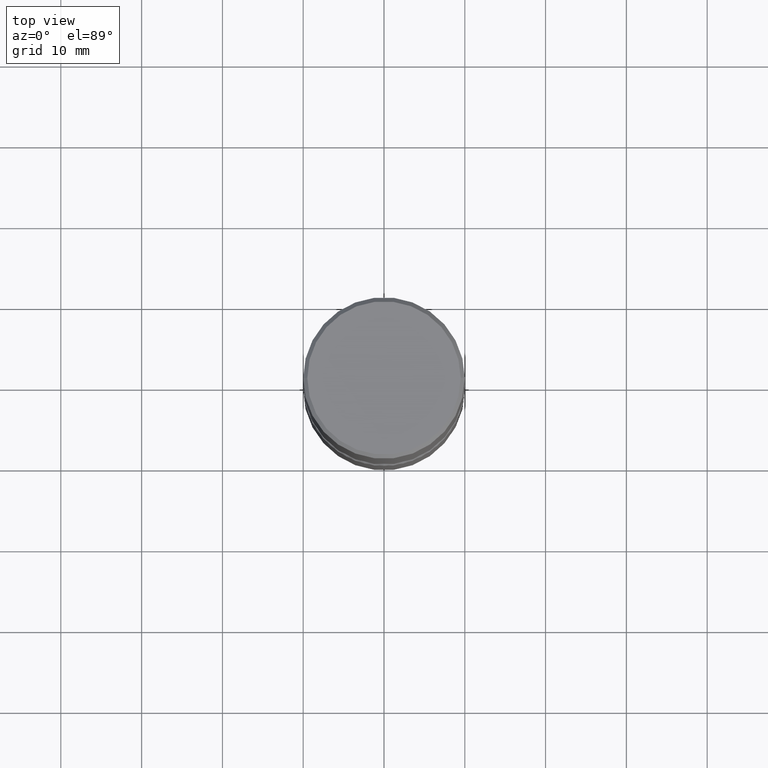
[diagram: clean part render]
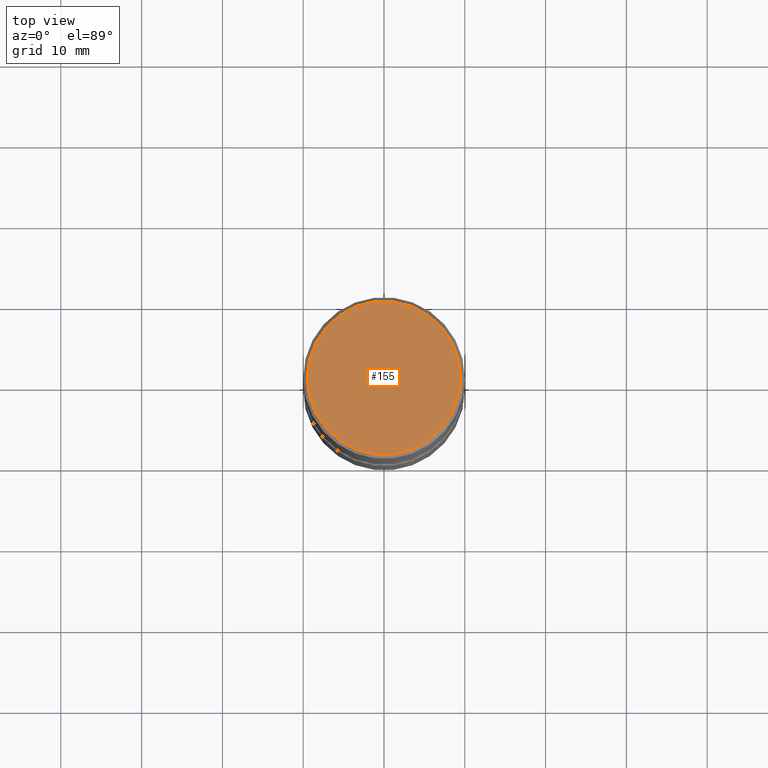
[diagram: same view with one face highlighted and labeled with its STEP entity id]
A machine part, top view. The second image highlights one B-rep face of the part: STEP entity #155.
In plain terms, the highlighted planar face has unit normal (0, -0, -1).
Its self-contained STEP definition (entity closure, byte-faithful):
#12 = CARTESIAN_POINT ( 'NONE',  ( 3.131554243005659264E-46, -4.471029511141341874E-32, -1.280553747030123384E-17 ) ) ;
#14 = AXIS2_PLACEMENT_3D ( 'NONE', #417, #413, #32 ) ;
#22 = CARTESIAN_POINT ( 'NONE',  ( -0.3737000000000003097, 2.644447966039791425E-15, -1.280553747031960567E-17 ) ) ;
#26 = EDGE_CURVE ( 'NONE', #301, #404, #297, .T. ) ;
#32 = DIRECTION ( 'NONE',  ( 1.000000000000000000, -6.982962677686266711E-15, 4.876212485538971195E-29 ) ) ;
#47 = CARTESIAN_POINT ( 'NONE',  ( 2.609533152651359776E-15, 0.3737000000000003097, -1.311169345060835261E-15 ) ) ;
#64 = ORIENTED_EDGE ( 'NONE', *, *, #106, .T. ) ;
#106 = EDGE_CURVE ( 'NONE', #404, #301, #272, .T. ) ;
#155 = ADVANCED_FACE ( 'NONE', ( #526 ), #185, .F. ) ;
#185 = PLANE ( 'NONE',  #353 ) ;
#255 = AXIS2_PLACEMENT_3D ( 'NONE', #12, #300, #514 ) ;
#272 = CIRCLE ( 'NONE', #255, 0.3737000000000003097 ) ;
#297 = CIRCLE ( 'NONE', #14, 0.3737000000000003097 ) ;
#300 = DIRECTION ( 'NONE',  ( -2.445468806185136597E-29, 3.491481338843145583E-15, 1.000000000000000000 ) ) ;
#301 = VERTEX_POINT ( 'NONE', #22 ) ;
#353 = AXIS2_PLACEMENT_3D ( 'NONE', #47, #475, #383 ) ;
#358 = EDGE_LOOP ( 'NONE', ( #454, #64 ) ) ;
#383 = DIRECTION ( 'NONE',  ( -1.000000000000000000, 6.982962677686265922E-15, -4.876176775795935793E-29 ) ) ;
#404 = VERTEX_POINT ( 'NONE', #442 ) ;
#413 = DIRECTION ( 'NONE',  ( -2.445468806185136597E-29, 3.491481338843145583E-15, 1.000000000000000000 ) ) ;
#417 = CARTESIAN_POINT ( 'NONE',  ( 3.131554243005659264E-46, -4.471029511141341874E-32, -1.280553747030123384E-17 ) ) ;
#442 = CARTESIAN_POINT ( 'NONE',  ( 0.3737000000000003097, -2.667287895133370725E-15, -1.280553747028278189E-17 ) ) ;
#454 = ORIENTED_EDGE ( 'NONE', *, *, #26, .T. ) ;
#475 = DIRECTION ( 'NONE',  ( 2.438088387897960049E-29, -3.491481338843145188E-15, -1.000000000000000000 ) ) ;
#514 = DIRECTION ( 'NONE',  ( 1.000000000000000000, -6.982962677686266711E-15, 4.876212485538971195E-29 ) ) ;
#526 = FACE_OUTER_BOUND ( 'NONE', #358, .T. ) ;